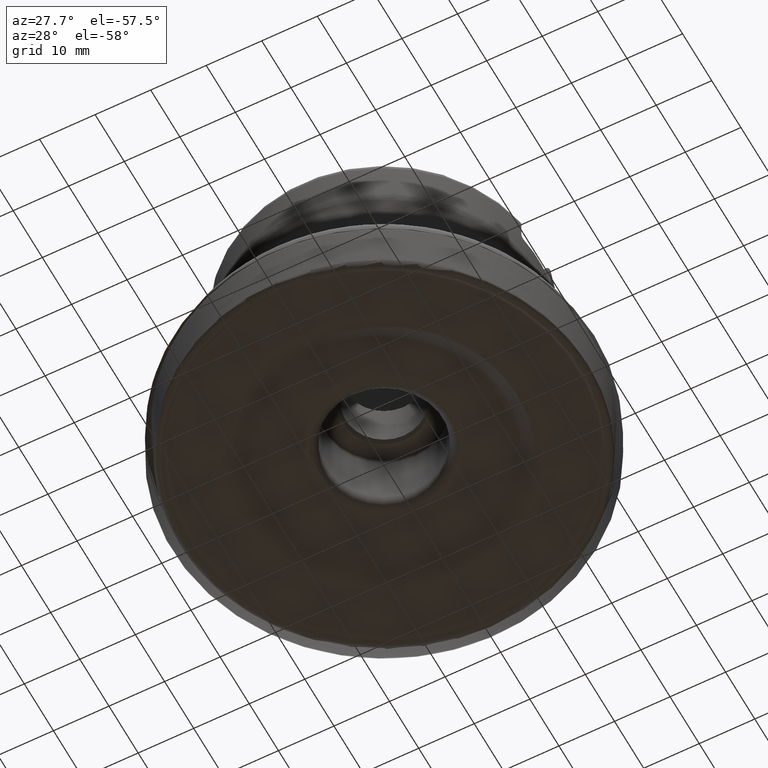
[diagram: clean part render]
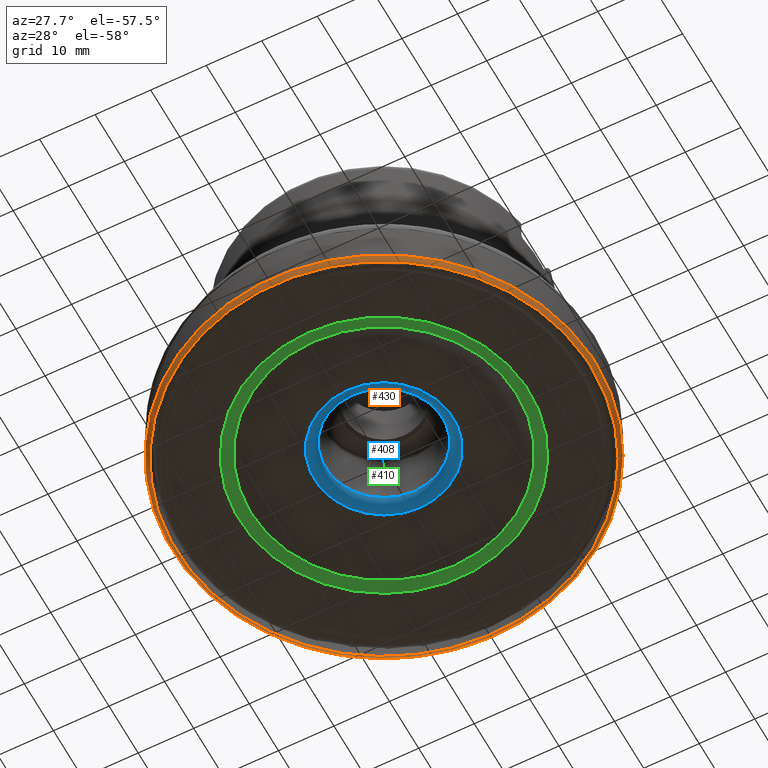
[diagram: same view with three faces highlighted in distinct colors, each labeled with its STEP entity id]
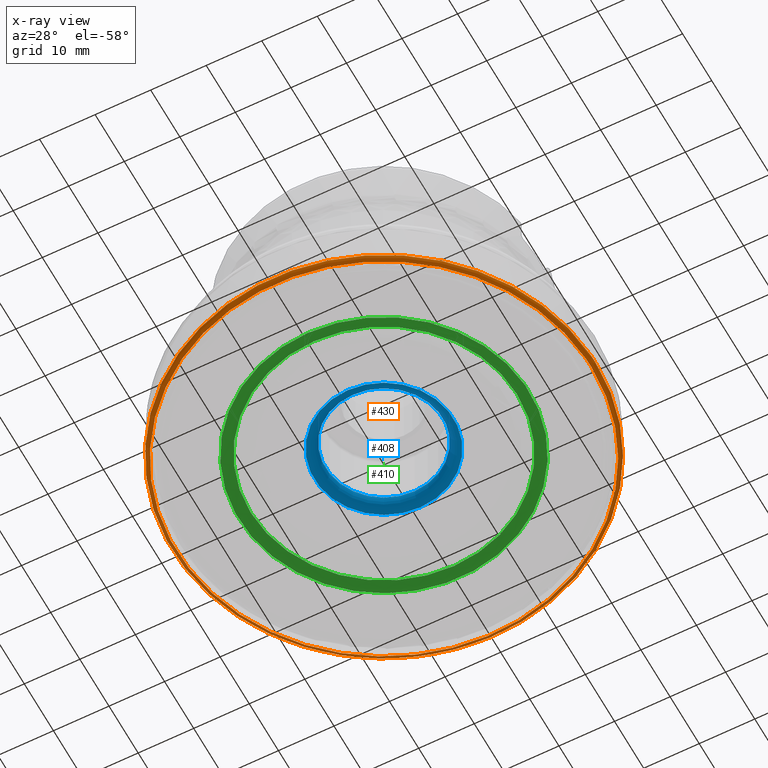
[diagram: x-ray of the same camera — body ghosted, the three highlighted faces saturated]
A machine part, auxiliary view with three faces highlighted in distinct colors.
The next image is the same camera in x-ray (body ghosted, the three faces saturated) — at least one of them is partly hidden behind the body in this view.
Their STEP definitions:

[orange] entity #430 — the highlighted face is a SurfaceOfRevolution surface.
#125=SURFACE_OF_REVOLUTION('',#1188,#149);
#149=AXIS1_PLACEMENT('',#2444,#1599);
#262=FACE_BOUND('',#590,.T.);
#263=FACE_BOUND('',#591,.T.);
#430=ADVANCED_FACE('',(#262,#263),#125,.F.);
#590=EDGE_LOOP('',(#895));
#591=EDGE_LOOP('',(#896));
#664=CIRCLE('',#1311,38.0999999999998);
#665=CIRCLE('',#1312,37.3284782592968);
#895=ORIENTED_EDGE('',*,*,#1118,.T.);
#896=ORIENTED_EDGE('',*,*,#1119,.F.);
#999=VERTEX_POINT('',#2424);
#1000=VERTEX_POINT('',#2433);
#1118=EDGE_CURVE('',#999,#999,#664,.T.);
#1119=EDGE_CURVE('',#1000,#1000,#665,.T.);
#1188=B_SPLINE_CURVE_WITH_KNOTS('',3,(#2434,#2435,#2436,#2437,#2438,#2439,
#2440,#2441,#2442,#2443),.UNSPECIFIED.,.F.,.F.,(4,1,1,1,1,1,1,4),(0.,0.125,
0.25,0.375,0.5,0.625,0.75,1.),.UNSPECIFIED.);
#1311=AXIS2_PLACEMENT_3D('',#2423,#1594,#1595);
#1312=AXIS2_PLACEMENT_3D('',#2432,#1597,#1598);
#1594=DIRECTION('',(0.,0.,1.));
#1595=DIRECTION('',(1.,0.,0.));
#1597=DIRECTION('',(0.,0.,1.));
#1598=DIRECTION('',(1.,0.,0.));
#1599=DIRECTION('',(0.,0.,1.));
#2423=CARTESIAN_POINT('',(0.,0.,0.753974618565298));
#2424=CARTESIAN_POINT('',(38.0999999999998,0.,0.753974618565298));
#2432=CARTESIAN_POINT('',(0.,0.,-6.13775819737165E-12));
#2433=CARTESIAN_POINT('',(37.3284782592968,0.,-6.13775819737165E-12));
#2434=CARTESIAN_POINT('',(37.0914449591114,-4.19999999999997,-5.71991074562151E-12));
#2435=CARTESIAN_POINT('',(37.1420995650745,-4.20094381964768,-0.00128197575628418));
#2436=CARTESIAN_POINT('',(37.2437632151266,-4.1983473131648,0.00649544214624548));
#2437=CARTESIAN_POINT('',(37.390810764097,-4.18667147189112,0.0478038719673545));
#2438=CARTESIAN_POINT('',(37.5264039698177,-4.17290051979477,0.117354438079477));
#2439=CARTESIAN_POINT('',(37.6458929995686,-4.15795564789658,0.21176448851658));
#2440=CARTESIAN_POINT('',(37.7446263759576,-4.14275821209908,0.327650785834306));
#2441=CARTESIAN_POINT('',(37.8442181677851,-4.12076428104704,0.504355768445664));
#2442=CARTESIAN_POINT('',(37.8779299519408,-4.10075624320213,0.654596874335781));
#2443=CARTESIAN_POINT('',(37.8809857542572,-4.07932816597879,0.753974618565298));
#2444=CARTESIAN_POINT('',(0.,0.,0.));

[blue] entity #408 — the highlighted toroidal blend (fillet) surface has major radius 12.5 mm and minor (blend) radius 2 mm.
#222=FACE_BOUND('',#548,.T.);
#223=FACE_BOUND('',#549,.T.);
#408=ADVANCED_FACE('',(#222,#223),#449,.T.);
#449=TOROIDAL_SURFACE('',#1289,12.5,2.);
#548=EDGE_LOOP('',(#847));
#549=EDGE_LOOP('',(#848));
#628=CIRCLE('',#1238,12.5);
#632=CIRCLE('',#1250,10.5);
#847=ORIENTED_EDGE('',*,*,#1062,.F.);
#848=ORIENTED_EDGE('',*,*,#1078,.F.);
#955=VERTEX_POINT('',#2097);
#965=VERTEX_POINT('',#2197);
#1062=EDGE_CURVE('',#955,#955,#628,.T.);
#1078=EDGE_CURVE('',#965,#965,#632,.T.);
#1238=AXIS2_PLACEMENT_3D('',#2096,#1418,#1419);
#1250=AXIS2_PLACEMENT_3D('',#2196,#1450,#1451);
#1289=AXIS2_PLACEMENT_3D('',#2284,#1532,#1533);
#1418=DIRECTION('',(0.,1.17145536458252E-15,1.));
#1419=DIRECTION('',(0.,-1.,1.17961196366423E-15));
#1450=DIRECTION('',(0.,-1.17145536458252E-15,-1.));
#1451=DIRECTION('',(0.,-1.,1.15648231731787E-15));
#1532=DIRECTION('',(0.,1.17145536458252E-15,1.));
#1533=DIRECTION('',(0.,-1.,1.19636101791504E-15));
#2096=CARTESIAN_POINT('',(0.,3.51436609374757E-15,3.));
#2097=CARTESIAN_POINT('',(0.,-12.5,3.00000000000002));
#2196=CARTESIAN_POINT('',(0.,5.85727682291262E-15,5.));
#2197=CARTESIAN_POINT('',(0.,-10.5,5.00000000000001));
#2284=CARTESIAN_POINT('',(0.,5.85727682291262E-15,5.));

[green] entity #410 — the highlighted toroidal blend (fillet) surface has major radius 26.1085 mm and minor (blend) radius 5 mm.
#226=FACE_BOUND('',#552,.T.);
#227=FACE_BOUND('',#553,.T.);
#410=ADVANCED_FACE('',(#226,#227),#451,.T.);
#451=TOROIDAL_SURFACE('',#1291,26.1084733132147,5.);
#552=EDGE_LOOP('',(#851));
#553=EDGE_LOOP('',(#852));
#623=CIRCLE('',#1231,26.1084733132147);
#626=CIRCLE('',#1235,23.9953820045112);
#851=ORIENTED_EDGE('',*,*,#1057,.F.);
#852=ORIENTED_EDGE('',*,*,#1060,.F.);
#950=VERTEX_POINT('',#2085);
#953=VERTEX_POINT('',#2092);
#1057=EDGE_CURVE('',#950,#950,#623,.T.);
#1060=EDGE_CURVE('',#953,#953,#626,.T.);
#1231=AXIS2_PLACEMENT_3D('',#2084,#1404,#1405);
#1235=AXIS2_PLACEMENT_3D('',#2091,#1412,#1413);
#1291=AXIS2_PLACEMENT_3D('',#2286,#1536,#1537);
#1404=DIRECTION('',(0.,1.17145536458252E-15,1.));
#1405=DIRECTION('',(0.,-1.,1.17105664882428E-15));
#1412=DIRECTION('',(0.,-1.17145536458252E-15,-1.));
#1413=DIRECTION('',(0.,-1.,1.17477840024899E-15));
#1536=DIRECTION('',(0.,1.17145536458252E-15,1.));
#1537=DIRECTION('',(0.,-1.,1.1710376343039E-15));
#2084=CARTESIAN_POINT('',(0.,1.28860090104078E-15,1.1));
#2085=CARTESIAN_POINT('',(0.,-26.1084733132147,1.10000000000003));
#2091=CARTESIAN_POINT('',(0.,1.83738212851841E-15,1.56846106481675));
#2092=CARTESIAN_POINT('',(0.,-23.9953820045112,1.56846106481678));
#2286=CARTESIAN_POINT('',(0.,7.1458777239534E-15,6.1));